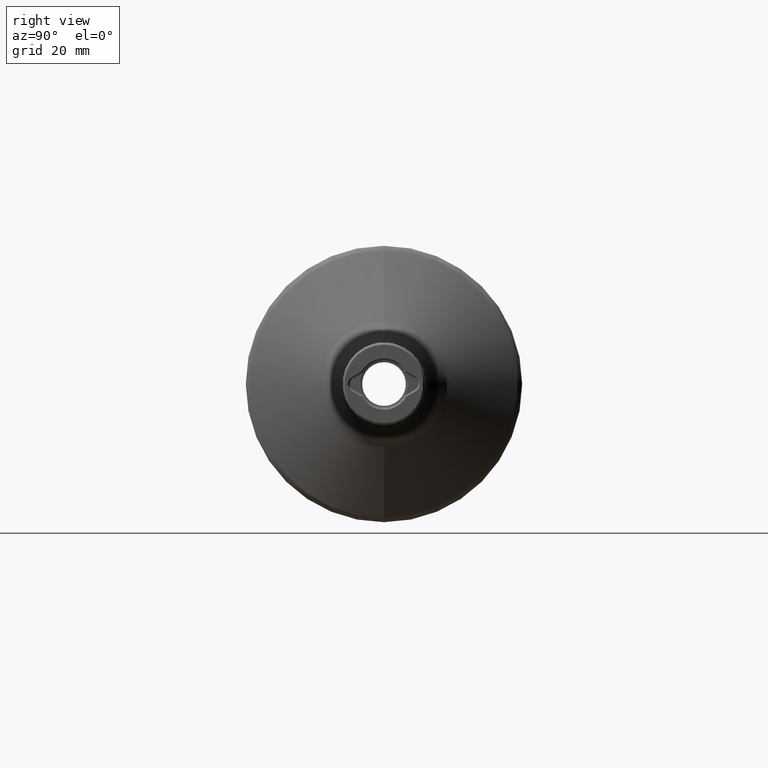
[diagram: clean part render]
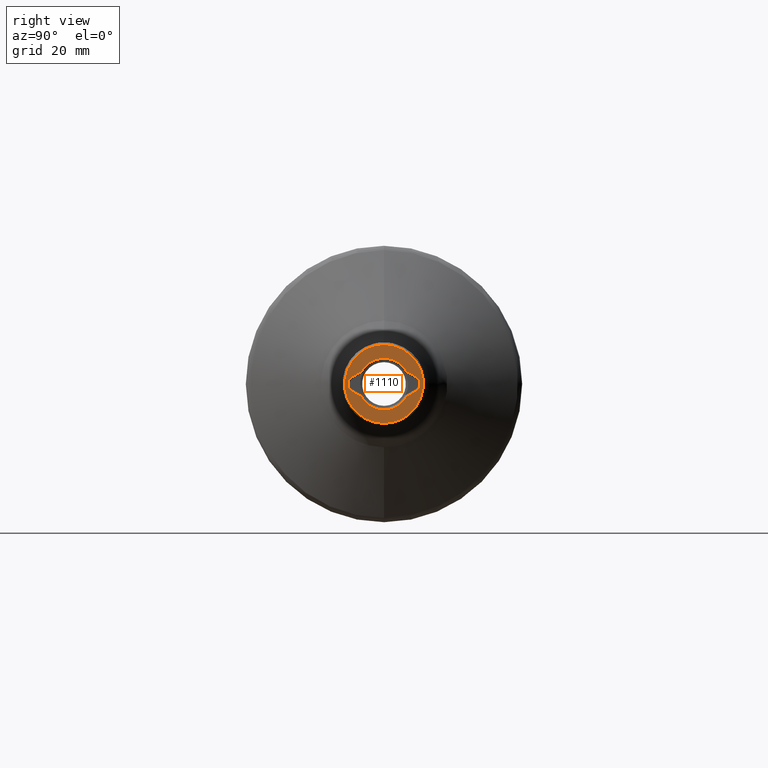
[diagram: same view with one face highlighted and labeled with its STEP entity id]
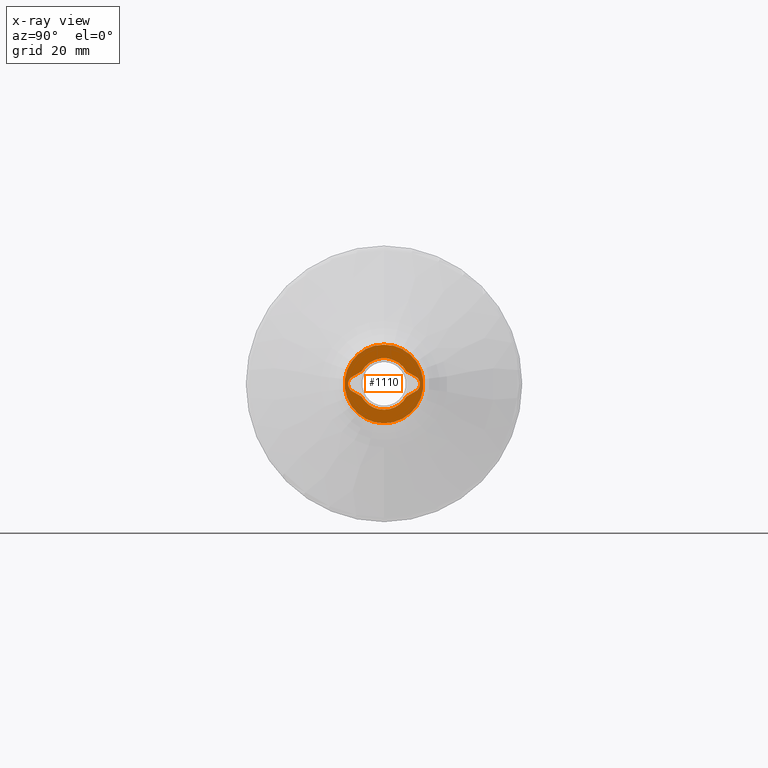
[diagram: x-ray of the same camera — body ghosted, the highlighted face saturated]
A machine part, right view. The second image highlights one B-rep face of the part: STEP entity #1110.
The next image is the same camera in x-ray: the body ghosted, the highlighted face saturated — about 0% of this face is hidden behind the body in this view.
In plain terms, the highlighted planar face has unit normal (1, 0, 0).
Its self-contained STEP definition (entity closure, byte-faithful):
#12 = LINE ( 'NONE', #1873, #3884 ) ;
#46 = CARTESIAN_POINT ( 'NONE',  ( 141.5000000000000300, 5.143412747963777700, -2.890554497684451700 ) ) ;
#50 = DIRECTION ( 'NONE',  ( 0.0000000000000000000, -0.8660254037844407100, 0.4999999999999965600 ) ) ;
#59 = CIRCLE ( 'NONE', #1814, 5.899999999999995000 ) ;
#93 = CARTESIAN_POINT ( 'NONE',  ( 141.5000000000000300, -7.300000000000006900, -1.645448267190438200 ) ) ;
#124 = ORIENTED_EDGE ( 'NONE', *, *, #1026, .T. ) ;
#145 = CARTESIAN_POINT ( 'NONE',  ( 141.5000000000000300, 0.0000000000000000000, -5.899999999999995000 ) ) ;
#185 = VECTOR ( 'NONE', #233, 1000.000000000000000 ) ;
#203 = DIRECTION ( 'NONE',  ( -1.000000000000000000, -0.0000000000000000000, -0.0000000000000000000 ) ) ;
#233 = DIRECTION ( 'NONE',  ( 0.0000000000000000000, -0.8660254037844387100, -0.4999999999999998900 ) ) ;
#251 = FACE_OUTER_BOUND ( 'NONE', #916, .T. ) ;
#318 = VERTEX_POINT ( 'NONE', #2491 ) ;
#346 = ORIENTED_EDGE ( 'NONE', *, *, #2185, .F. ) ;
#355 = DIRECTION ( 'NONE',  ( 0.0000000000000000000, 0.8660254037844402600, -0.4999999999999970600 ) ) ;
#439 = ORIENTED_EDGE ( 'NONE', *, *, #3385, .F. ) ;
#441 = CARTESIAN_POINT ( 'NONE',  ( 141.5000000000000300, 0.0000000000000000000, 0.0000000000000000000 ) ) ;
#484 = ORIENTED_EDGE ( 'NONE', *, *, #3349, .T. ) ;
#524 = CARTESIAN_POINT ( 'NONE',  ( 141.5000000000000300, 7.300000000000002500, -1.645448267190430200 ) ) ;
#557 = CARTESIAN_POINT ( 'NONE',  ( 141.5000000000000300, -7.300000000000001600, 1.645448267190431100 ) ) ;
#584 = CARTESIAN_POINT ( 'NONE',  ( 141.5000000000000300, 0.0000000000000000000, 0.0000000000000000000 ) ) ;
#638 = VERTEX_POINT ( 'NONE', #557 ) ;
#677 = EDGE_CURVE ( 'NONE', #1567, #749, #59, .T. ) ;
#749 = VERTEX_POINT ( 'NONE', #1198 ) ;
#789 = CARTESIAN_POINT ( 'NONE',  ( 141.5000000000000300, -5.046639543748014500, 2.946426533188764900 ) ) ;
#817 = ORIENTED_EDGE ( 'NONE', *, *, #677, .T. ) ;
#865 = ORIENTED_EDGE ( 'NONE', *, *, #1984, .T. ) ;
#885 = DIRECTION ( 'NONE',  ( 0.0000000000000000000, 0.0000000000000000000, -1.000000000000000000 ) ) ;
#895 = LINE ( 'NONE', #789, #3140 ) ;
#916 = EDGE_LOOP ( 'NONE', ( #346, #439 ) ) ;
#978 = EDGE_CURVE ( 'NONE', #1443, #638, #2460, .T. ) ;
#988 = DIRECTION ( 'NONE',  ( -1.000000000000000000, -0.0000000000000000000, -0.0000000000000000000 ) ) ;
#998 = LINE ( 'NONE', #2070, #185 ) ;
#1026 = EDGE_CURVE ( 'NONE', #3398, #1828, #12, .T. ) ;
#1050 = DIRECTION ( 'NONE',  ( 0.0000000000000000000, 0.0000000000000000000, -1.000000000000000000 ) ) ;
#1110 = ADVANCED_FACE ( 'NONE', ( #2594, #251 ), #2232, .T. ) ;
#1198 = CARTESIAN_POINT ( 'NONE',  ( 141.5000000000000300, -5.143412747963763500, -2.890554497684447300 ) ) ;
#1243 = AXIS2_PLACEMENT_3D ( 'NONE', #2809, #988, #3130 ) ;
#1261 = CARTESIAN_POINT ( 'NONE',  ( 141.5000000000000300, -6.350000000000003200, 0.0000000000000000000 ) ) ;
#1271 = ORIENTED_EDGE ( 'NONE', *, *, #3080, .T. ) ;
#1310 = AXIS2_PLACEMENT_3D ( 'NONE', #1261, #3405, #1582 ) ;
#1443 = VERTEX_POINT ( 'NONE', #93 ) ;
#1475 = VECTOR ( 'NONE', #50, 1000.000000000000100 ) ;
#1485 = ORIENTED_EDGE ( 'NONE', *, *, #978, .T. ) ;
#1567 = VERTEX_POINT ( 'NONE', #145 ) ;
#1579 = CARTESIAN_POINT ( 'NONE',  ( 141.5000000000000300, -7.300000000000005200, -1.645448267190439400 ) ) ;
#1582 = DIRECTION ( 'NONE',  ( 0.0000000000000000000, 0.0000000000000000000, -1.000000000000000000 ) ) ;
#1583 = DIRECTION ( 'NONE',  ( -1.000000000000000000, -0.0000000000000000000, -0.0000000000000000000 ) ) ;
#1599 = CARTESIAN_POINT ( 'NONE',  ( 141.5000000000000300, 0.0000000000000000000, 0.0000000000000000000 ) ) ;
#1635 = DIRECTION ( 'NONE',  ( -1.000000000000000000, -0.0000000000000000000, -0.0000000000000000000 ) ) ;
#1748 = AXIS2_PLACEMENT_3D ( 'NONE', #2041, #203, #2351 ) ;
#1767 = VERTEX_POINT ( 'NONE', #2795 ) ;
#1814 = AXIS2_PLACEMENT_3D ( 'NONE', #584, #2713, #885 ) ;
#1828 = VERTEX_POINT ( 'NONE', #3184 ) ;
#1866 = AXIS2_PLACEMENT_3D ( 'NONE', #3454, #1635, #3759 ) ;
#1873 = CARTESIAN_POINT ( 'NONE',  ( 141.5000000000000300, 7.300000000000005200, 1.645448267190437100 ) ) ;
#1897 = CARTESIAN_POINT ( 'NONE',  ( 141.5000000000000300, 5.143412747963763500, 2.890554497684445900 ) ) ;
#1902 = DIRECTION ( 'NONE',  ( 0.0000000000000000000, 0.0000000000000000000, 1.000000000000000000 ) ) ;
#1984 = EDGE_CURVE ( 'NONE', #3690, #3927, #998, .T. ) ;
#2041 = CARTESIAN_POINT ( 'NONE',  ( 141.5000000000000300, 0.0000000000000000000, 0.0000000000000000000 ) ) ;
#2070 = CARTESIAN_POINT ( 'NONE',  ( 141.5000000000000300, 5.046639543748012700, -2.946426533188765800 ) ) ;
#2140 = EDGE_CURVE ( 'NONE', #318, #3398, #3667, .T. ) ;
#2152 = CIRCLE ( 'NONE', #3885, 9.000000000000000000 ) ;
#2185 = EDGE_CURVE ( 'NONE', #1767, #3316, #2152, .T. ) ;
#2232 = PLANE ( 'NONE',  #3768 ) ;
#2237 = ORIENTED_EDGE ( 'NONE', *, *, #3638, .T. ) ;
#2351 = DIRECTION ( 'NONE',  ( 0.0000000000000000000, 0.0000000000000000000, -1.000000000000000000 ) ) ;
#2460 = CIRCLE ( 'NONE', #1310, 1.899999999999997200 ) ;
#2488 = CARTESIAN_POINT ( 'NONE',  ( 141.5000000000000300, 1.120551821219828100E-015, -9.000000000000000000 ) ) ;
#2491 = CARTESIAN_POINT ( 'NONE',  ( 141.5000000000000300, -5.143412747963768800, 2.890554497684436600 ) ) ;
#2594 = FACE_BOUND ( 'NONE', #3952, .T. ) ;
#2713 = DIRECTION ( 'NONE',  ( -1.000000000000000000, -0.0000000000000000000, -0.0000000000000000000 ) ) ;
#2795 = CARTESIAN_POINT ( 'NONE',  ( 141.5000000000000300, 0.0000000000000000000, 9.000000000000000000 ) ) ;
#2809 = CARTESIAN_POINT ( 'NONE',  ( 141.5000000000000300, 0.0000000000000000000, 0.0000000000000000000 ) ) ;
#2880 = DIRECTION ( 'NONE',  ( 1.000000000000000000, 0.0000000000000000000, 0.0000000000000000000 ) ) ;
#2920 = ORIENTED_EDGE ( 'NONE', *, *, #3484, .T. ) ;
#2937 = DIRECTION ( 'NONE',  ( 0.0000000000000000000, 0.8660254037844387100, 0.4999999999999998900 ) ) ;
#2965 = ORIENTED_EDGE ( 'NONE', *, *, #2140, .T. ) ;
#3007 = CIRCLE ( 'NONE', #1243, 9.000000000000000000 ) ;
#3080 = EDGE_CURVE ( 'NONE', #3927, #1567, #3954, .T. ) ;
#3092 = LINE ( 'NONE', #1579, #1475 ) ;
#3130 = DIRECTION ( 'NONE',  ( 0.0000000000000000000, 0.0000000000000000000, 1.000000000000000000 ) ) ;
#3140 = VECTOR ( 'NONE', #2937, 1000.000000000000000 ) ;
#3184 = CARTESIAN_POINT ( 'NONE',  ( 141.5000000000000300, 7.300000000000006900, 1.645448267190436000 ) ) ;
#3280 = AXIS2_PLACEMENT_3D ( 'NONE', #3408, #1583, #3709 ) ;
#3316 = VERTEX_POINT ( 'NONE', #2488 ) ;
#3349 = EDGE_CURVE ( 'NONE', #749, #1443, #3092, .T. ) ;
#3385 = EDGE_CURVE ( 'NONE', #3316, #1767, #3007, .T. ) ;
#3398 = VERTEX_POINT ( 'NONE', #1897 ) ;
#3405 = DIRECTION ( 'NONE',  ( -1.000000000000000000, -0.0000000000000000000, -0.0000000000000000000 ) ) ;
#3408 = CARTESIAN_POINT ( 'NONE',  ( 141.5000000000000300, 0.0000000000000000000, 0.0000000000000000000 ) ) ;
#3454 = CARTESIAN_POINT ( 'NONE',  ( 141.5000000000000300, 6.350000000000005000, 0.0000000000000000000 ) ) ;
#3484 = EDGE_CURVE ( 'NONE', #1828, #3690, #3701, .T. ) ;
#3638 = EDGE_CURVE ( 'NONE', #638, #318, #895, .T. ) ;
#3667 = CIRCLE ( 'NONE', #3280, 5.899999999999995000 ) ;
#3690 = VERTEX_POINT ( 'NONE', #524 ) ;
#3701 = CIRCLE ( 'NONE', #1866, 1.899999999999996100 ) ;
#3709 = DIRECTION ( 'NONE',  ( 0.0000000000000000000, 1.776356839400250500E-015, -1.000000000000000000 ) ) ;
#3721 = DIRECTION ( 'NONE',  ( -1.000000000000000000, -0.0000000000000000000, -0.0000000000000000000 ) ) ;
#3759 = DIRECTION ( 'NONE',  ( 0.0000000000000000000, 0.0000000000000000000, -1.000000000000000000 ) ) ;
#3768 = AXIS2_PLACEMENT_3D ( 'NONE', #441, #2880, #1050 ) ;
#3884 = VECTOR ( 'NONE', #355, 1000.000000000000100 ) ;
#3885 = AXIS2_PLACEMENT_3D ( 'NONE', #1599, #3721, #1902 ) ;
#3927 = VERTEX_POINT ( 'NONE', #46 ) ;
#3952 = EDGE_LOOP ( 'NONE', ( #1485, #2237, #2965, #124, #2920, #865, #1271, #817, #484 ) ) ;
#3954 = CIRCLE ( 'NONE', #1748, 5.899999999999995000 ) ;